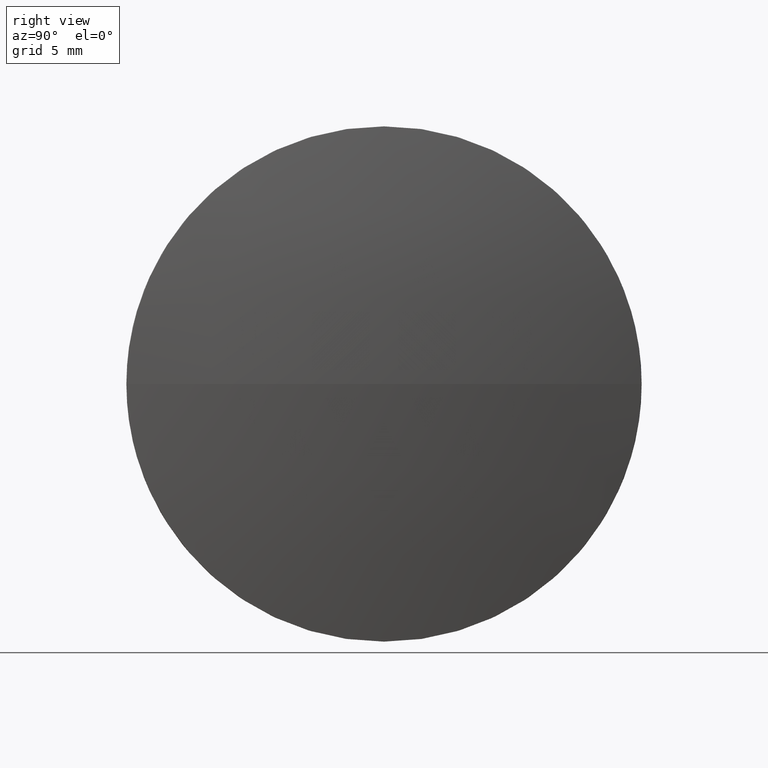
[diagram: clean part render]
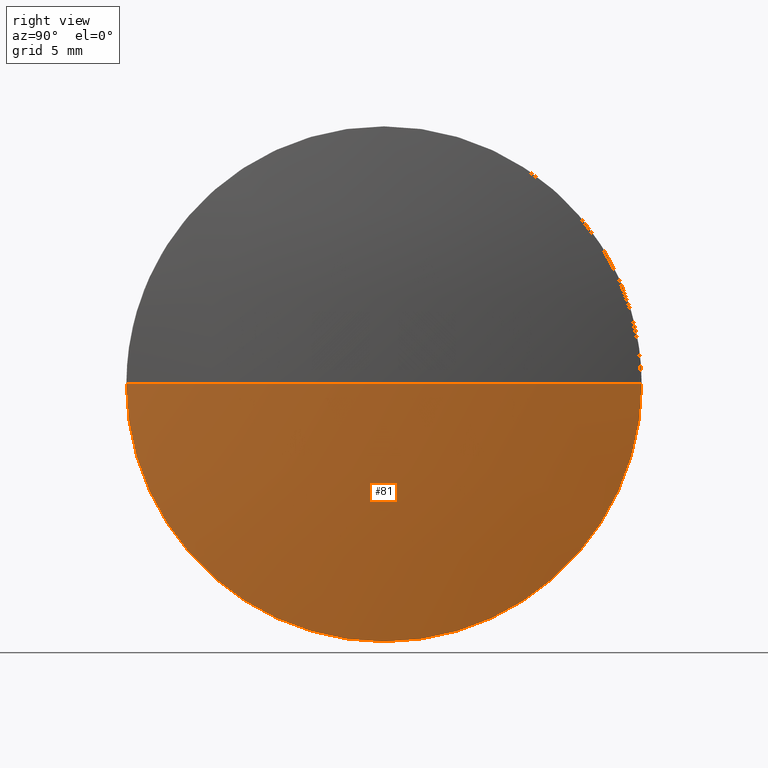
[diagram: same view with one face highlighted and labeled with its STEP entity id]
A machine part, right view. The second image highlights one B-rep face of the part: STEP entity #81.
In plain terms, the highlighted spherical surface has radius 73.8636 mm.
Its self-contained STEP definition (entity closure, byte-faithful):
#5 = CARTESIAN_POINT ( 'NONE',  ( 45.00091911256444600, 65.23355492641219700, 0.0000000000000000000 ) ) ;
#7 = CARTESIAN_POINT ( 'NONE',  ( 45.00091911256444600, 65.23355492641219700, 0.0000000000000000000 ) ) ;
#10 = DIRECTION ( 'NONE',  ( 0.0000000000000000000, 1.000000000000000000, 1.224646799147353200E-016 ) ) ;
#13 = ORIENTED_EDGE ( 'NONE', *, *, #37, .F. ) ;
#15 = ORIENTED_EDGE ( 'NONE', *, *, #127, .F. ) ;
#24 = DIRECTION ( 'NONE',  ( 1.000000000000000000, 0.0000000000000000000, 0.0000000000000000000 ) ) ;
#25 = DIRECTION ( 'NONE',  ( 0.0000000000000000000, 1.000000000000000000, 0.0000000000000000000 ) ) ;
#26 = CIRCLE ( 'NONE', #149, 73.86363636363674300 ) ;
#29 = FACE_OUTER_BOUND ( 'NONE', #176, .T. ) ;
#31 = AXIS2_PLACEMENT_3D ( 'NONE', #34, #47, #96 ) ;
#34 = CARTESIAN_POINT ( 'NONE',  ( 117.7645554762012000, 65.23355492641219700, 0.0000000000000000000 ) ) ;
#35 = ORIENTED_EDGE ( 'NONE', *, *, #46, .F. ) ;
#36 = ORIENTED_EDGE ( 'NONE', *, *, #45, .T. ) ;
#37 = EDGE_CURVE ( 'NONE', #64, #59, #172, .T. ) ;
#43 = AXIS2_PLACEMENT_3D ( 'NONE', #52, #50, #25 ) ;
#45 = EDGE_CURVE ( 'NONE', #119, #59, #118, .T. ) ;
#46 = EDGE_CURVE ( 'NONE', #119, #97, #26, .T. ) ;
#47 = DIRECTION ( 'NONE',  ( -1.000000000000000000, -0.0000000000000000000, -0.0000000000000000000 ) ) ;
#50 = DIRECTION ( 'NONE',  ( -0.0000000000000000000, 0.0000000000000000000, -1.000000000000000000 ) ) ;
#52 = CARTESIAN_POINT ( 'NONE',  ( 45.00091911256444600, 65.23355492641219700, 0.0000000000000000000 ) ) ;
#53 = CIRCLE ( 'NONE', #77, 12.70000000000000300 ) ;
#59 = VERTEX_POINT ( 'NONE', #141 ) ;
#61 = AXIS2_PLACEMENT_3D ( 'NONE', #5, #155, #10 ) ;
#64 = VERTEX_POINT ( 'NONE', #126 ) ;
#77 = AXIS2_PLACEMENT_3D ( 'NONE', #86, #101, #170 ) ;
#81 = ADVANCED_FACE ( 'NONE', ( #29 ), #175, .T. ) ;
#86 = CARTESIAN_POINT ( 'NONE',  ( 117.7645554762012000, 65.23355492641219700, 0.0000000000000000000 ) ) ;
#96 = DIRECTION ( 'NONE',  ( 0.0000000000000000000, 0.0000000000000000000, 1.000000000000000000 ) ) ;
#97 = VERTEX_POINT ( 'NONE', #158 ) ;
#101 = DIRECTION ( 'NONE',  ( -1.000000000000000000, -0.0000000000000000000, -0.0000000000000000000 ) ) ;
#108 = CARTESIAN_POINT ( 'NONE',  ( 118.8645554762011900, 65.23355492641219700, 0.0000000000000000000 ) ) ;
#118 = CIRCLE ( 'NONE', #61, 73.86363636363674300 ) ;
#119 = VERTEX_POINT ( 'NONE', #108 ) ;
#126 = CARTESIAN_POINT ( 'NONE',  ( 117.7645554762012000, 65.23355492641219700, -12.70000000000000300 ) ) ;
#127 = EDGE_CURVE ( 'NONE', #97, #64, #53, .T. ) ;
#141 = CARTESIAN_POINT ( 'NONE',  ( 117.7645554762012000, 52.53355492641222200, -1.555301434917136100E-015 ) ) ;
#149 = AXIS2_PLACEMENT_3D ( 'NONE', #7, #171, #24 ) ;
#155 = DIRECTION ( 'NONE',  ( 0.0000000000000000000, 1.224646799147353200E-016, -1.000000000000000000 ) ) ;
#158 = CARTESIAN_POINT ( 'NONE',  ( 117.7645554762012000, 77.93355492641218500, 0.0000000000000000000 ) ) ;
#170 = DIRECTION ( 'NONE',  ( 0.0000000000000000000, 0.0000000000000000000, 1.000000000000000000 ) ) ;
#171 = DIRECTION ( 'NONE',  ( -0.0000000000000000000, 0.0000000000000000000, 1.000000000000000000 ) ) ;
#172 = CIRCLE ( 'NONE', #31, 12.70000000000000300 ) ;
#175 = SPHERICAL_SURFACE ( 'NONE', #43, 73.86363636363674300 ) ;
#176 = EDGE_LOOP ( 'NONE', ( #35, #36, #13, #15 ) ) ;